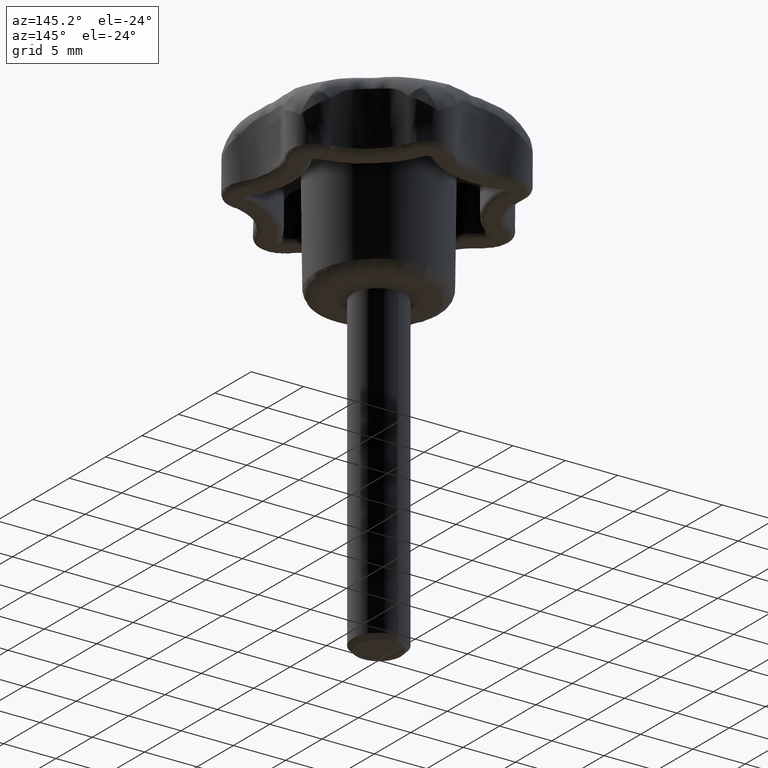
[diagram: clean part render]
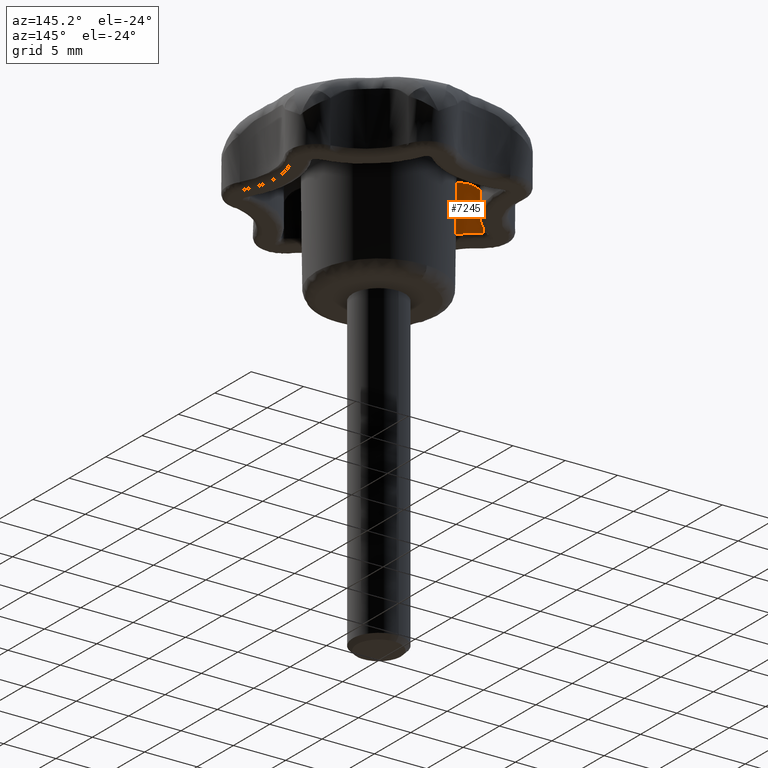
[diagram: same view with one face highlighted and labeled with its STEP entity id]
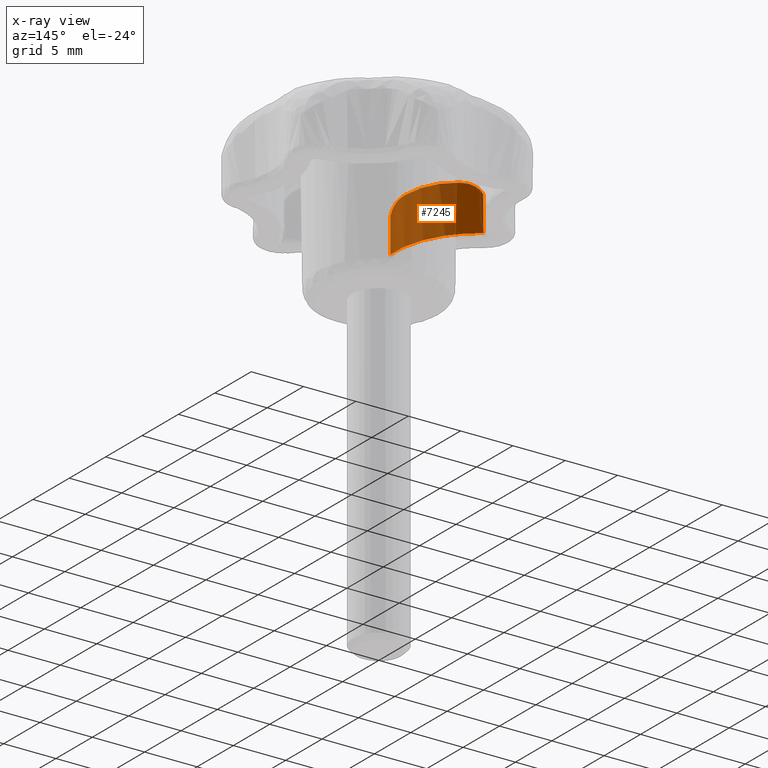
[diagram: x-ray of the same camera — body ghosted, the highlighted face saturated]
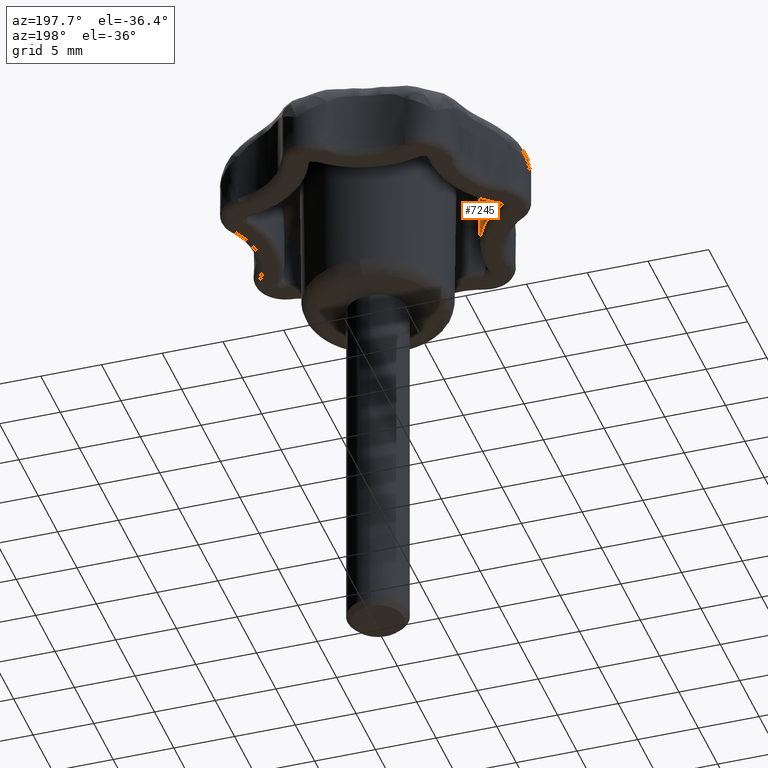
[diagram: same view with one face highlighted and labeled with its STEP entity id]
A machine part, auxiliary view. The second image highlights one B-rep face of the part: STEP entity #7245.
The next image is the same camera in x-ray: the body ghosted, the highlighted face saturated — about 72% of this face is hidden behind the body in this view.
A second angle (auxiliary view) of the same face is appended — the face is thin or edge-on in the first view.
In plain terms, the highlighted face is a freeform B-spline surface patch.
Its self-contained STEP definition (entity closure, byte-faithful):
#5720=CARTESIAN_POINT('',(-6.533765689261131,-7.792274563832909,0.499999999999945));
#5721=VERTEX_POINT('',#5720);
#5862=CARTESIAN_POINT('',(-10.165981871484361,-0.249900091739698,0.499999999999945));
#5863=VERTEX_POINT('',#5862);
#5877=CARTESIAN_POINT('',(-6.533765689261131,-7.792274563832909,0.499999999999945));
#5878=CARTESIAN_POINT('',(-6.111249151702433,-2.943022504531362,0.499999999999945));
#5879=CARTESIAN_POINT('',(-10.165981871484361,-0.249900091739700,0.499999999999945));
#5887=(BOUNDED_CURVE()B_SPLINE_CURVE(2,(#5877,#5878,#5879),.UNSPECIFIED.,.F.,.U.)CURVE()GEOMETRIC_REPRESENTATION_ITEM()QUASI_UNIFORM_CURVE()RATIONAL_B_SPLINE_CURVE((1.0,0.859906564056747,1.0))REPRESENTATION_ITEM(''));
#5888=EDGE_CURVE('',#5721,#5863,#5887,.T.);
#7139=CARTESIAN_POINT('',(-6.570607444787603,-8.132731119054721,5.172138288032074));
#7140=CARTESIAN_POINT('',(-6.570607444787603,-8.132731119054721,0.383196542799142));
#7141=CARTESIAN_POINT('',(-5.878271235438857,-2.781968919497048,5.172138288032074));
#7142=CARTESIAN_POINT('',(-5.878271235438857,-2.781968919497048,0.383196542799142));
#7143=CARTESIAN_POINT('',(-10.518211291045677,-0.028617902396973,5.172138288032073));
#7144=CARTESIAN_POINT('',(-10.518211291045677,-0.028617902396973,0.383196542799141));
#7152=(BOUNDED_SURFACE()B_SPLINE_SURFACE(1,2,((#7139,#7141,#7143),(#7140,#7142,#7144)),.UNSPECIFIED.,.F.,.F.,.U.)B_SPLINE_SURFACE_WITH_KNOTS((2,2),(3,3),(0.0,4.788941745232933),(0.0,9.822932034005143),.UNSPECIFIED.)GEOMETRIC_REPRESENTATION_ITEM()RATIONAL_B_SPLINE_SURFACE(((1.0,0.834705748217839,0.998368241877023),(1.0,0.834705748217839,0.998368241877023)))REPRESENTATION_ITEM('')SURFACE());
#7153=CARTESIAN_POINT('',(-6.533765689261131,-7.792274563832909,3.825502342482910));
#7154=VERTEX_POINT('',#7153);
#7155=CARTESIAN_POINT('',(-6.533765689261131,-7.792274563832909,3.825502342482910));
#7156=CARTESIAN_POINT('',(-6.533765689261131,-7.792274563832909,0.499999999999945));
#7157=QUASI_UNIFORM_CURVE('',1,(#7155,#7156),.UNSPECIFIED.,.F.,.U.);
#7158=EDGE_CURVE('',#7154,#5721,#7157,.T.);
#7159=ORIENTED_EDGE('',*,*,#7158,.T.);
#7160=ORIENTED_EDGE('',*,*,#5888,.T.);
#7161=CARTESIAN_POINT('',(-10.165981871484361,-0.249900091739698,3.825502280765370));
#7162=VERTEX_POINT('',#7161);
#7163=CARTESIAN_POINT('',(-10.165981871484361,-0.249900091739698,3.825502280765370));
#7164=CARTESIAN_POINT('',(-10.165981871484361,-0.249900091739698,0.499999999999945));
#7165=QUASI_UNIFORM_CURVE('',1,(#7163,#7164),.UNSPECIFIED.,.F.,.U.);
#7166=EDGE_CURVE('',#7162,#5863,#7165,.T.);
#7167=ORIENTED_EDGE('',*,*,#7166,.F.);
#7168=CARTESIAN_POINT('',(-8.735189583532129,-1.456675570795470,4.915994343988230));
#7169=VERTEX_POINT('',#7168);
#7170=CARTESIAN_POINT('',(-8.735189583532129,-1.456675570795470,4.915994343988230));
#7171=CARTESIAN_POINT('',(-8.774278588058248,-1.415198061334327,4.909594180367874));
#7172=CARTESIAN_POINT('',(-8.813689522409453,-1.374241566935540,4.902147908690349));
#7173=CARTESIAN_POINT('',(-8.922204084194101,-1.263780731760506,4.878515436067506));
#7174=CARTESIAN_POINT('',(-8.991757869095904,-1.195510663967824,4.859937164650087));
#7175=CARTESIAN_POINT('',(-9.131571019492291,-1.062983174534631,4.814077059168984));
#7176=CARTESIAN_POINT('',(-9.201832228433075,-0.998724690598513,4.786803264403944));
#7177=CARTESIAN_POINT('',(-9.307349067201935,-0.905458684251207,4.737924013396755));
#7178=CARTESIAN_POINT('',(-9.342541292874971,-0.874890608400838,4.720299501662836));
#7179=CARTESIAN_POINT('',(-9.412882957979587,-0.814820577472586,4.682087596709051));
#7180=CARTESIAN_POINT('',(-9.448163194518397,-0.785212227111163,4.661412832971177));
#7181=CARTESIAN_POINT('',(-9.552520880136257,-0.699075094711930,4.595244257837619));
#7182=CARTESIAN_POINT('',(-9.620227663649143,-0.645122105025990,4.545619248813330));
#7183=CARTESIAN_POINT('',(-9.718133690909024,-0.569384583379816,4.461896778136599));
#7184=CARTESIAN_POINT('',(-9.750158127801663,-0.545005247583996,4.432438423179903));
#7185=CARTESIAN_POINT('',(-9.812808195030797,-0.497997986775160,4.370189682723685));
#7186=CARTESIAN_POINT('',(-9.843528430513306,-0.475301349243325,4.337289439145994));
#7187=CARTESIAN_POINT('',(-9.932634239778507,-0.410362115516547,4.233896977435707));
#7188=CARTESIAN_POINT('',(-9.987100376112236,-0.371882542085646,4.159821078662101));
#7189=CARTESIAN_POINT('',(-10.085141276597620,-0.304026169724890,4.000970279161034));
#7190=CARTESIAN_POINT('',(-10.128733367178540,-0.274640121480808,3.916210134564689));
#7191=CARTESIAN_POINT('',(-10.165981871484361,-0.249900091739698,3.825502280765370));
#7192=B_SPLINE_CURVE_WITH_KNOTS('',3,(#7170,#7171,#7172,#7173,#7174,#7175,#7176,#7177,#7178,#7179,#7180,#7181,#7182,#7183,#7184,#7185,#7186,#7187,#7188,#7189,#7190,#7191),.UNSPECIFIED.,.F.,.U.,(4,2,2,2,2,2,2,2,2,2,4),(0.763337928342846,0.781249999999997,0.812499999999997,0.843749999999997,0.859374999999997,0.874999999999997,0.906249999999997,0.921874999999997,0.937499999999998,0.968749999999999,1.0),.UNSPECIFIED.);
#7193=EDGE_CURVE('',#7169,#7162,#7192,.T.);
#7194=ORIENTED_EDGE('',*,*,#7193,.F.);
#7195=CARTESIAN_POINT('',(-6.585176450553590,-5.921223851018880,4.915994343988230));
#7196=VERTEX_POINT('',#7195);
#7197=CARTESIAN_POINT('',(-6.585176450553590,-5.921223851018881,4.915994343988241));
#7198=CARTESIAN_POINT('',(-6.644690875551154,-5.504485009000228,4.963259378335091));
#7199=CARTESIAN_POINT('',(-6.735720199186199,-5.095018140130215,4.998729479619700));
#7200=CARTESIAN_POINT('',(-6.888749669147328,-4.592247541090943,5.028484800002915));
#7201=CARTESIAN_POINT('',(-6.921328555651942,-4.492149056495317,5.033702443816631));
#7202=CARTESIAN_POINT('',(-6.990472599124710,-4.292872778758652,5.042657494500907));
#7203=CARTESIAN_POINT('',(-7.027107037790616,-4.193520804226967,5.046399774474920));
#7204=CARTESIAN_POINT('',(-7.142565223895031,-3.898160264307288,5.055338395838480));
#7205=CARTESIAN_POINT('',(-7.226642315739107,-3.705499238040871,5.058242584008022));
#7206=CARTESIAN_POINT('',(-7.499566589025074,-3.139882322341815,5.058063205216187));
#7207=CARTESIAN_POINT('',(-7.708990135136324,-2.779222777285116,5.046141313011280));
#7208=CARTESIAN_POINT('',(-8.064095732252772,-2.262718638678961,5.010615282702300));
#7209=CARTESIAN_POINT('',(-8.189322006274027,-2.094649031737430,4.995819258188242));
#7210=CARTESIAN_POINT('',(-8.387692960745001,-1.848839120424451,4.969075111093704));
#7211=CARTESIAN_POINT('',(-8.455570950457826,-1.767976960450739,4.959398175232592));
#7212=CARTESIAN_POINT('',(-8.593513638317509,-1.609906297312174,4.938716818103361));
#7213=CARTESIAN_POINT('',(-8.663737947538627,-1.532495228461420,4.927691652702717));
#7214=CARTESIAN_POINT('',(-8.735189583532129,-1.456675570795470,4.915994343988230));
#7215=B_SPLINE_CURVE_WITH_KNOTS('',3,(#7197,#7198,#7199,#7200,#7201,#7202,#7203,#7204,#7205,#7206,#7207,#7208,#7209,#7210,#7211,#7212,#7213,#7214),.UNSPECIFIED.,.F.,.U.,(4,2,2,2,2,2,2,2,4),(0.0,0.250000000000000,0.312500000000000,0.375000000000000,0.500000000000000,0.750000000000000,0.875000000000000,0.937500000000000,1.0),.UNSPECIFIED.);
#7216=EDGE_CURVE('',#7196,#7169,#7215,.T.);
#7217=ORIENTED_EDGE('',*,*,#7216,.F.);
#7218=CARTESIAN_POINT('',(-6.533765689261131,-7.792274563832909,3.825502342482910));
#7219=CARTESIAN_POINT('',(-6.529874049074549,-7.747609894862532,3.916449083055518));
#7220=CARTESIAN_POINT('',(-6.525653908959267,-7.695004307140017,4.001502112513776));
#7221=CARTESIAN_POINT('',(-6.519572555476041,-7.605311955652818,4.121111687363486));
#7222=CARTESIAN_POINT('',(-6.517587008185578,-7.573605687419002,4.159644717773269));
#7223=CARTESIAN_POINT('',(-6.513828270317955,-7.506652977673680,4.234100750842873));
#7224=CARTESIAN_POINT('',(-6.512051323785128,-7.471320270085191,4.270103095549001));
#7225=CARTESIAN_POINT('',(-6.507268424964234,-7.360605663979901,4.373712621613619));
#7226=CARTESIAN_POINT('',(-6.504869143699508,-7.281885240470940,4.435747083296417));
#7227=CARTESIAN_POINT('',(-6.503071666565329,-7.157407160375896,4.519646302571315));
#7228=CARTESIAN_POINT('',(-6.502772142194075,-7.114842879890197,4.546079601474778));
#7229=CARTESIAN_POINT('',(-6.502870348688062,-7.027684710650306,4.596045327051556));
#7230=CARTESIAN_POINT('',(-6.503270994843136,-6.982944748154370,4.619646293813975));
#7231=CARTESIAN_POINT('',(-6.507222549422212,-6.756230123852227,4.729874660508642));
#7232=CARTESIAN_POINT('',(-6.516577008017128,-6.567378637529608,4.792819238116179));
#7233=CARTESIAN_POINT('',(-6.537527702016978,-6.325235422972691,4.850115074092813));
#7234=CARTESIAN_POINT('',(-6.542178655614430,-6.276496541145153,4.860485258533948));
#7235=CARTESIAN_POINT('',(-6.552432681384476,-6.178460856380711,4.879241719598119));
#7236=CARTESIAN_POINT('',(-6.558049210794950,-6.129061887858746,4.887641420994984));
#7237=CARTESIAN_POINT('',(-6.570618156489315,-6.026842440485550,4.903089097756632));
#7238=CARTESIAN_POINT('',(-6.577640336295470,-5.973994085180828,4.910009766409506));
#7239=CARTESIAN_POINT('',(-6.585176450553590,-5.921223851018880,4.915994343988230));
#7240=B_SPLINE_CURVE_WITH_KNOTS('',3,(#7218,#7219,#7220,#7221,#7222,#7223,#7224,#7225,#7226,#7227,#7228,#7229,#7230,#7231,#7232,#7233,#7234,#7235,#7236,#7237,#7238,#7239),.UNSPECIFIED.,.F.,.U.,(4,2,2,2,2,2,2,2,2,2,4),(0.0,0.031250000000000,0.046875000000000,0.062500000000000,0.093750000000000,0.109375000000001,0.125000000000001,0.187500000000001,0.203125000000001,0.218750000000001,0.235523724560366),.UNSPECIFIED.);
#7241=EDGE_CURVE('',#7154,#7196,#7240,.T.);
#7242=ORIENTED_EDGE('',*,*,#7241,.F.);
#7243=EDGE_LOOP('',(#7159,#7160,#7167,#7194,#7217,#7242));
#7244=FACE_OUTER_BOUND('',#7243,.T.);
#7245=ADVANCED_FACE('',(#7244),#7152,.T.);